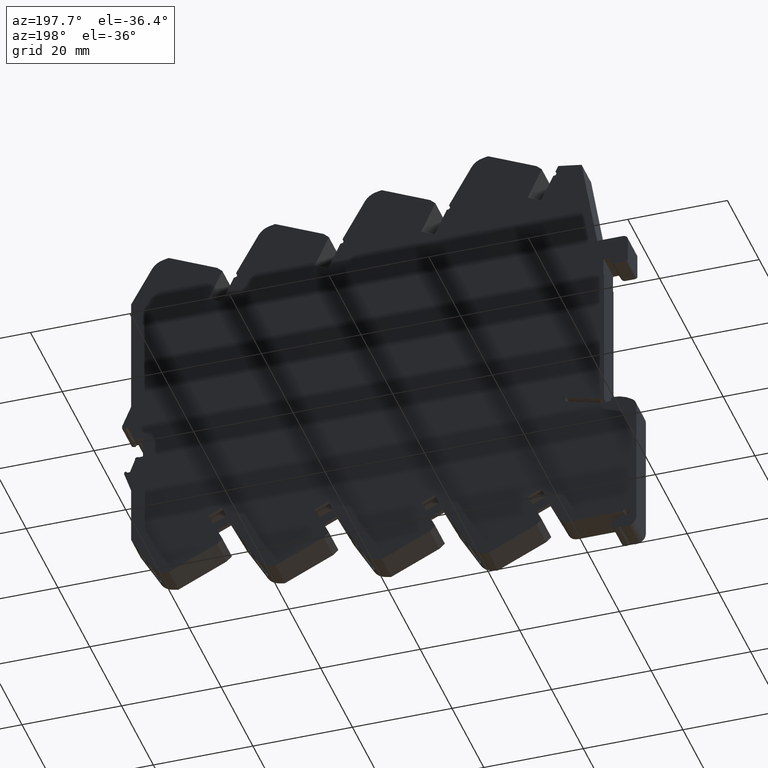
[diagram: clean part render]
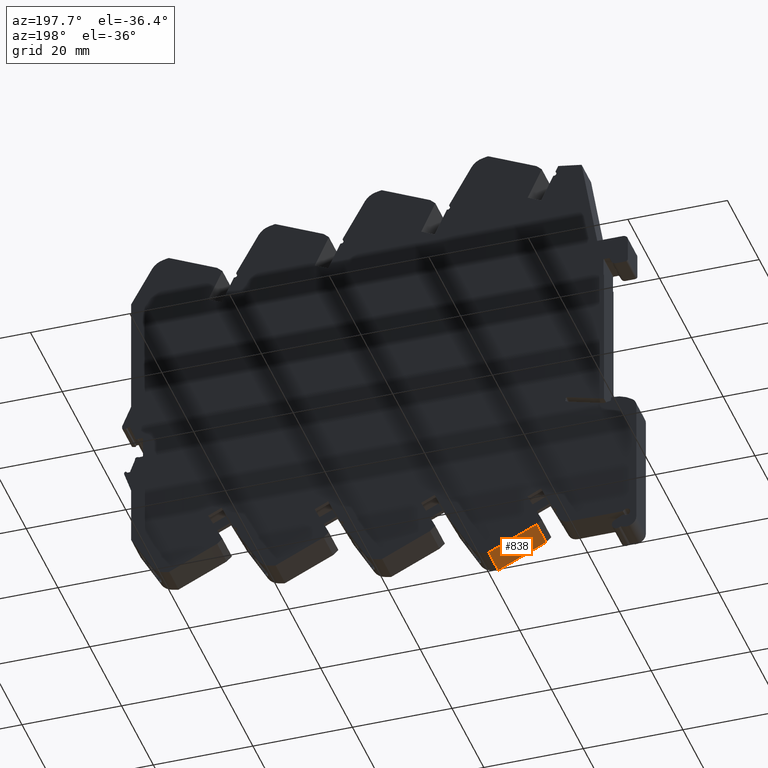
[diagram: same view with one face highlighted and labeled with its STEP entity id]
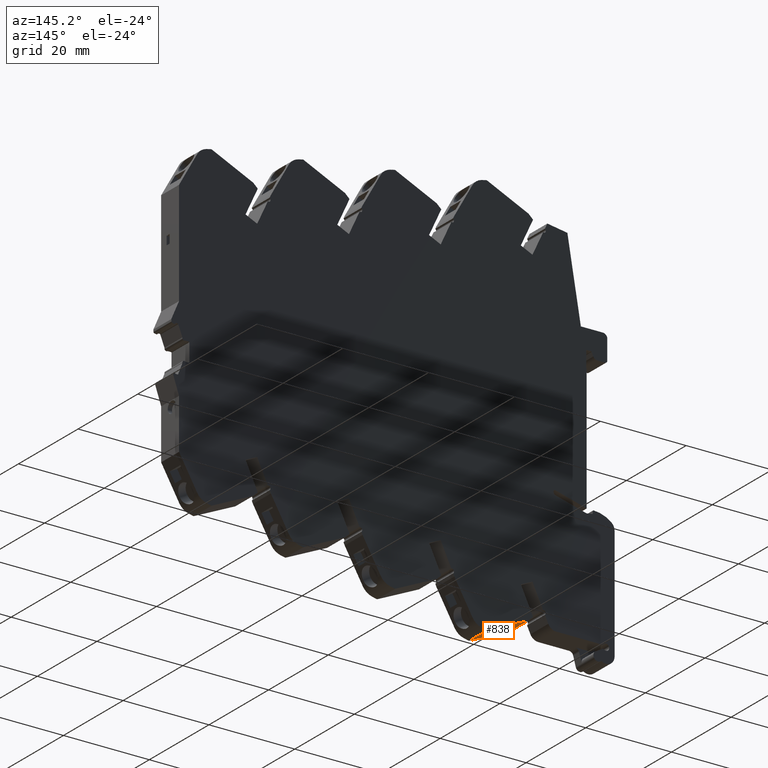
[diagram: same view with one face highlighted and labeled with its STEP entity id]
A machine part, auxiliary view. The second image highlights one B-rep face of the part: STEP entity #838.
A second angle (auxiliary view) of the same face is appended — the face is thin or edge-on in the first view.
In plain terms, the highlighted planar face has unit normal (0.4226, 0, 0.9063).
Its self-contained STEP definition (entity closure, byte-faithful):
#416 = LINE ( 'NONE', #4538, #6983 ) ;
#838 = ADVANCED_FACE ( 'NONE', ( #1366 ), #6458, .F. ) ;
#1000 = LINE ( 'NONE', #3501, #3406 ) ;
#1075 = VERTEX_POINT ( 'NONE', #7665 ) ;
#1366 = FACE_OUTER_BOUND ( 'NONE', #2216, .T. ) ;
#1426 = LINE ( 'NONE', #6040, #3396 ) ;
#1544 = CARTESIAN_POINT ( 'NONE',  ( 3.000000000000000000, -41.63255900000000054, -30.70050699999999111 ) ) ;
#2157 = DIRECTION ( 'NONE',  ( 0.000000000000000000, 0.4226182966199911184, -0.9063077707721682863 ) ) ;
#2216 = EDGE_LOOP ( 'NONE', ( #4945, #7133, #5166, #6740 ) ) ;
#2743 = LINE ( 'NONE', #7447, #6845 ) ;
#2842 = CARTESIAN_POINT ( 'NONE',  ( -3.000000000000000000, -41.63255900000000054, -30.70050699999999111 ) ) ;
#3124 = VERTEX_POINT ( 'NONE', #1544 ) ;
#3396 = VECTOR ( 'NONE', #2157, 1000.000000000000114 ) ;
#3406 = VECTOR ( 'NONE', #3631, 1000.000000000000000 ) ;
#3501 = CARTESIAN_POINT ( 'NONE',  ( 3.000000000000000000, -46.11747228031759960, -21.08258039885699375 ) ) ;
#3631 = DIRECTION ( 'NONE',  ( -1.000000000000000000, 0.000000000000000000, 0.000000000000000000 ) ) ;
#3957 = DIRECTION ( 'NONE',  ( -1.000000000000000000, 0.000000000000000000, 0.000000000000000000 ) ) ;
#4538 = CARTESIAN_POINT ( 'NONE',  ( 3.000000000000000000, -41.63255900000000054, -30.70050699999999111 ) ) ;
#4943 = DIRECTION ( 'NONE',  ( -1.000000000000000000, 0.000000000000000000, 0.000000000000000000 ) ) ;
#4945 = ORIENTED_EDGE ( 'NONE', *, *, #5292, .T. ) ;
#5016 = VERTEX_POINT ( 'NONE', #5956 ) ;
#5166 = ORIENTED_EDGE ( 'NONE', *, *, #7688, .F. ) ;
#5292 = EDGE_CURVE ( 'NONE', #1075, #8450, #1426, .T. ) ;
#5753 = EDGE_CURVE ( 'NONE', #3124, #8450, #416, .T. ) ;
#5956 = CARTESIAN_POINT ( 'NONE',  ( 3.000000000000000000, -46.11747228031759960, -21.08258039885699375 ) ) ;
#6040 = CARTESIAN_POINT ( 'NONE',  ( -3.000000000000000000, -46.11747228031759960, -21.08258039885699375 ) ) ;
#6458 = PLANE ( 'NONE',  #7201 ) ;
#6540 = DIRECTION ( 'NONE',  ( 0.000000000000000000, 0.9063077707721683973, 0.4226182966199911739 ) ) ;
#6740 = ORIENTED_EDGE ( 'NONE', *, *, #7383, .T. ) ;
#6845 = VECTOR ( 'NONE', #7736, 1000.000000000000114 ) ;
#6983 = VECTOR ( 'NONE', #4943, 1000.000000000000000 ) ;
#7133 = ORIENTED_EDGE ( 'NONE', *, *, #5753, .F. ) ;
#7196 = CARTESIAN_POINT ( 'NONE',  ( 3.000000000000000000, -46.11747228031759960, -21.08258039885699375 ) ) ;
#7201 = AXIS2_PLACEMENT_3D ( 'NONE', #7196, #6540, #3957 ) ;
#7383 = EDGE_CURVE ( 'NONE', #5016, #1075, #1000, .T. ) ;
#7447 = CARTESIAN_POINT ( 'NONE',  ( 3.000000000000000000, -46.11747228031759960, -21.08258039885699375 ) ) ;
#7665 = CARTESIAN_POINT ( 'NONE',  ( -3.000000000000000000, -46.11747228031759960, -21.08258039885699375 ) ) ;
#7688 = EDGE_CURVE ( 'NONE', #5016, #3124, #2743, .T. ) ;
#7736 = DIRECTION ( 'NONE',  ( 0.000000000000000000, 0.4226182966199911184, -0.9063077707721682863 ) ) ;
#8450 = VERTEX_POINT ( 'NONE', #2842 ) ;